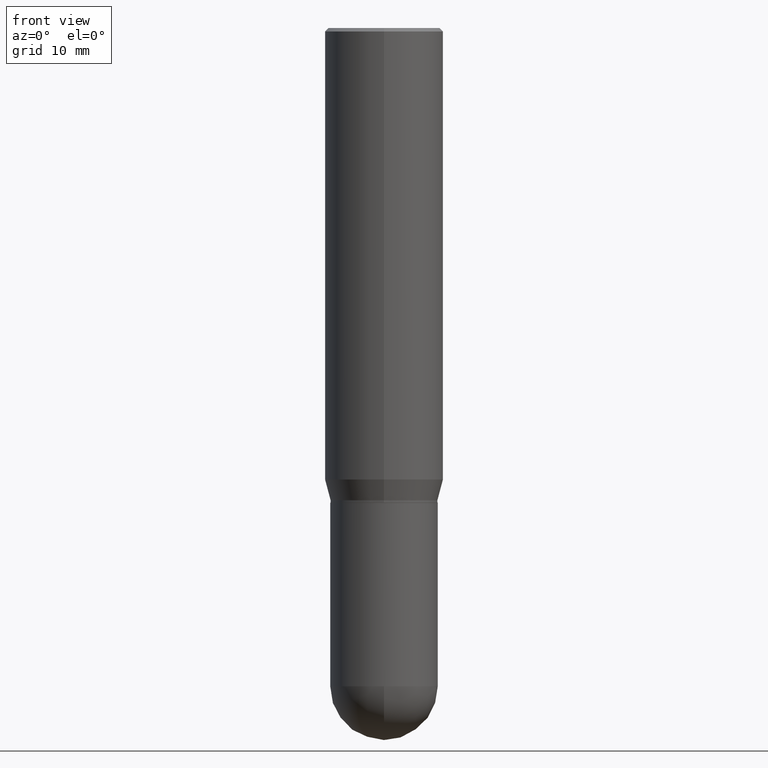
[diagram: clean part render]
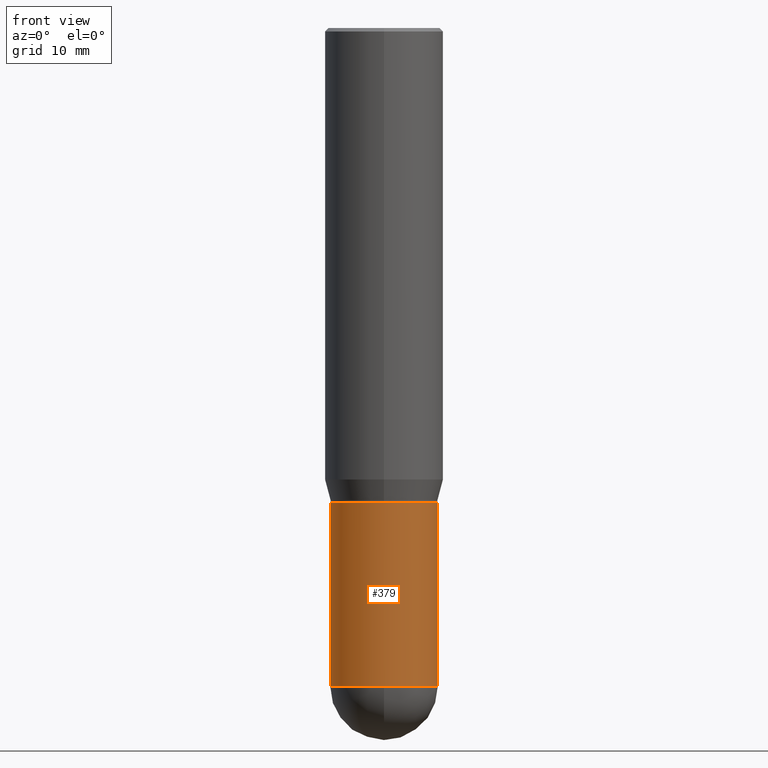
[diagram: same view with one face highlighted and labeled with its STEP entity id]
A machine part, front view. The second image highlights one B-rep face of the part: STEP entity #379.
In plain terms, the highlighted cylindrical surface (partial cylindrical patch) has radius 5.7544 mm, axis along (-0, 0, 1).
Its self-contained STEP definition (entity closure, byte-faithful):
#2 = AXIS2_PLACEMENT_3D ( 'NONE', #154, #24, #275 ) ;
#8 = EDGE_CURVE ( 'NONE', #92, #375, #74, .T. ) ;
#16 = CARTESIAN_POINT ( 'NONE',  ( -1.609734567864438547E-15, -0.2265500000000096603, -2.773449999999999971 ) ) ;
#24 = DIRECTION ( 'NONE',  ( -2.445468806185136597E-29, 3.491481338843145583E-15, 1.000000000000000000 ) ) ;
#38 = LINE ( 'NONE', #294, #320 ) ;
#74 = LINE ( 'NONE', #243, #246 ) ;
#92 = VERTEX_POINT ( 'NONE', #487 ) ;
#147 = DIRECTION ( 'NONE',  ( -2.445468806185136597E-29, 3.491481338843145583E-15, 1.000000000000000000 ) ) ;
#154 = CARTESIAN_POINT ( 'NONE',  ( 6.782385460514168389E-29, -9.683448919214523504E-15, -2.773450000000000415 ) ) ;
#159 = CARTESIAN_POINT ( 'NONE',  ( 0.000000000000000000, 0.000000000000000000, 0.000000000000000000 ) ) ;
#162 = VERTEX_POINT ( 'NONE', #16 ) ;
#173 = CIRCLE ( 'NONE', #2, 0.2265500000000000291 ) ;
#194 = CARTESIAN_POINT ( 'NONE',  ( -0.2265500000000000291, -6.723471230585900551E-15, -2.000000000000000444 ) ) ;
#199 = ORIENTED_EDGE ( 'NONE', *, *, #315, .T. ) ;
#204 = CARTESIAN_POINT ( 'NONE',  ( 0.2265500000000000291, -9.915195993080232639E-15, -2.773450000000000415 ) ) ;
#215 = ORIENTED_EDGE ( 'NONE', *, *, #492, .T. ) ;
#218 = EDGE_LOOP ( 'NONE', ( #302, #215, #265, #199, #285 ) ) ;
#223 = CARTESIAN_POINT ( 'NONE',  ( 6.782385460514168389E-29, -9.683448919214523504E-15, -2.773450000000000415 ) ) ;
#225 = EDGE_CURVE ( 'NONE', #375, #501, #407, .T. ) ;
#243 = CARTESIAN_POINT ( 'NONE',  ( -0.2265500000000000291, 1.609734567864507178E-15, -1.114384744697249003E-29 ) ) ;
#246 = VECTOR ( 'NONE', #282, 39.37007874015748143 ) ;
#265 = ORIENTED_EDGE ( 'NONE', *, *, #347, .T. ) ;
#266 = DIRECTION ( 'NONE',  ( -2.445468806185136877E-29, 3.491481338843145188E-15, 1.000000000000000000 ) ) ;
#275 = DIRECTION ( 'NONE',  ( 1.000000000000000000, -6.982962677686266711E-15, 0.000000000000000000 ) ) ;
#282 = DIRECTION ( 'NONE',  ( -2.445468806185136877E-29, 3.491481338843145188E-15, 1.000000000000000000 ) ) ;
#285 = ORIENTED_EDGE ( 'NONE', *, *, #225, .F. ) ;
#288 = CARTESIAN_POINT ( 'NONE',  ( 4.890937612370273754E-29, -6.982962677686291954E-15, -2.000000000000000444 ) ) ;
#293 = DIRECTION ( 'NONE',  ( 1.000000000000000000, -6.982962677686266711E-15, 0.000000000000000000 ) ) ;
#294 = CARTESIAN_POINT ( 'NONE',  ( 0.2265500000000000291, -1.581990194629823924E-15, 1.104697848556569421E-29 ) ) ;
#302 = ORIENTED_EDGE ( 'NONE', *, *, #8, .F. ) ;
#303 = DIRECTION ( 'NONE',  ( -2.445468806185136597E-29, 3.491481338843145583E-15, 1.000000000000000000 ) ) ;
#306 = CIRCLE ( 'NONE', #457, 0.2265500000000000291 ) ;
#315 = EDGE_CURVE ( 'NONE', #405, #501, #38, .T. ) ;
#320 = VECTOR ( 'NONE', #266, 39.37007874015748143 ) ;
#332 = DIRECTION ( 'NONE',  ( 1.000000000000000000, -6.982962677686266711E-15, 0.000000000000000000 ) ) ;
#334 = CARTESIAN_POINT ( 'NONE',  ( 0.2265500000000000291, -8.564952872316116075E-15, -2.000000000000000444 ) ) ;
#347 = EDGE_CURVE ( 'NONE', #162, #405, #173, .T. ) ;
#351 = FACE_OUTER_BOUND ( 'NONE', #218, .T. ) ;
#362 = AXIS2_PLACEMENT_3D ( 'NONE', #288, #147, #293 ) ;
#375 = VERTEX_POINT ( 'NONE', #194 ) ;
#378 = DIRECTION ( 'NONE',  ( -2.445468806185136597E-29, 3.491481338843145583E-15, 1.000000000000000000 ) ) ;
#379 = ADVANCED_FACE ( 'NONE', ( #351 ), #480, .T. ) ;
#405 = VERTEX_POINT ( 'NONE', #204 ) ;
#407 = CIRCLE ( 'NONE', #362, 0.2265500000000000291 ) ;
#456 = AXIS2_PLACEMENT_3D ( 'NONE', #159, #303, #468 ) ;
#457 = AXIS2_PLACEMENT_3D ( 'NONE', #223, #378, #332 ) ;
#468 = DIRECTION ( 'NONE',  ( 1.000000000000000000, -6.982962677686266711E-15, 4.876176775795935793E-29 ) ) ;
#480 = CYLINDRICAL_SURFACE ( 'NONE', #456, 0.2265500000000000291 ) ;
#487 = CARTESIAN_POINT ( 'NONE',  ( -0.2265500000000000291, -6.723471230585900551E-15, -2.773450000000000415 ) ) ;
#492 = EDGE_CURVE ( 'NONE', #92, #162, #306, .T. ) ;
#501 = VERTEX_POINT ( 'NONE', #334 ) ;